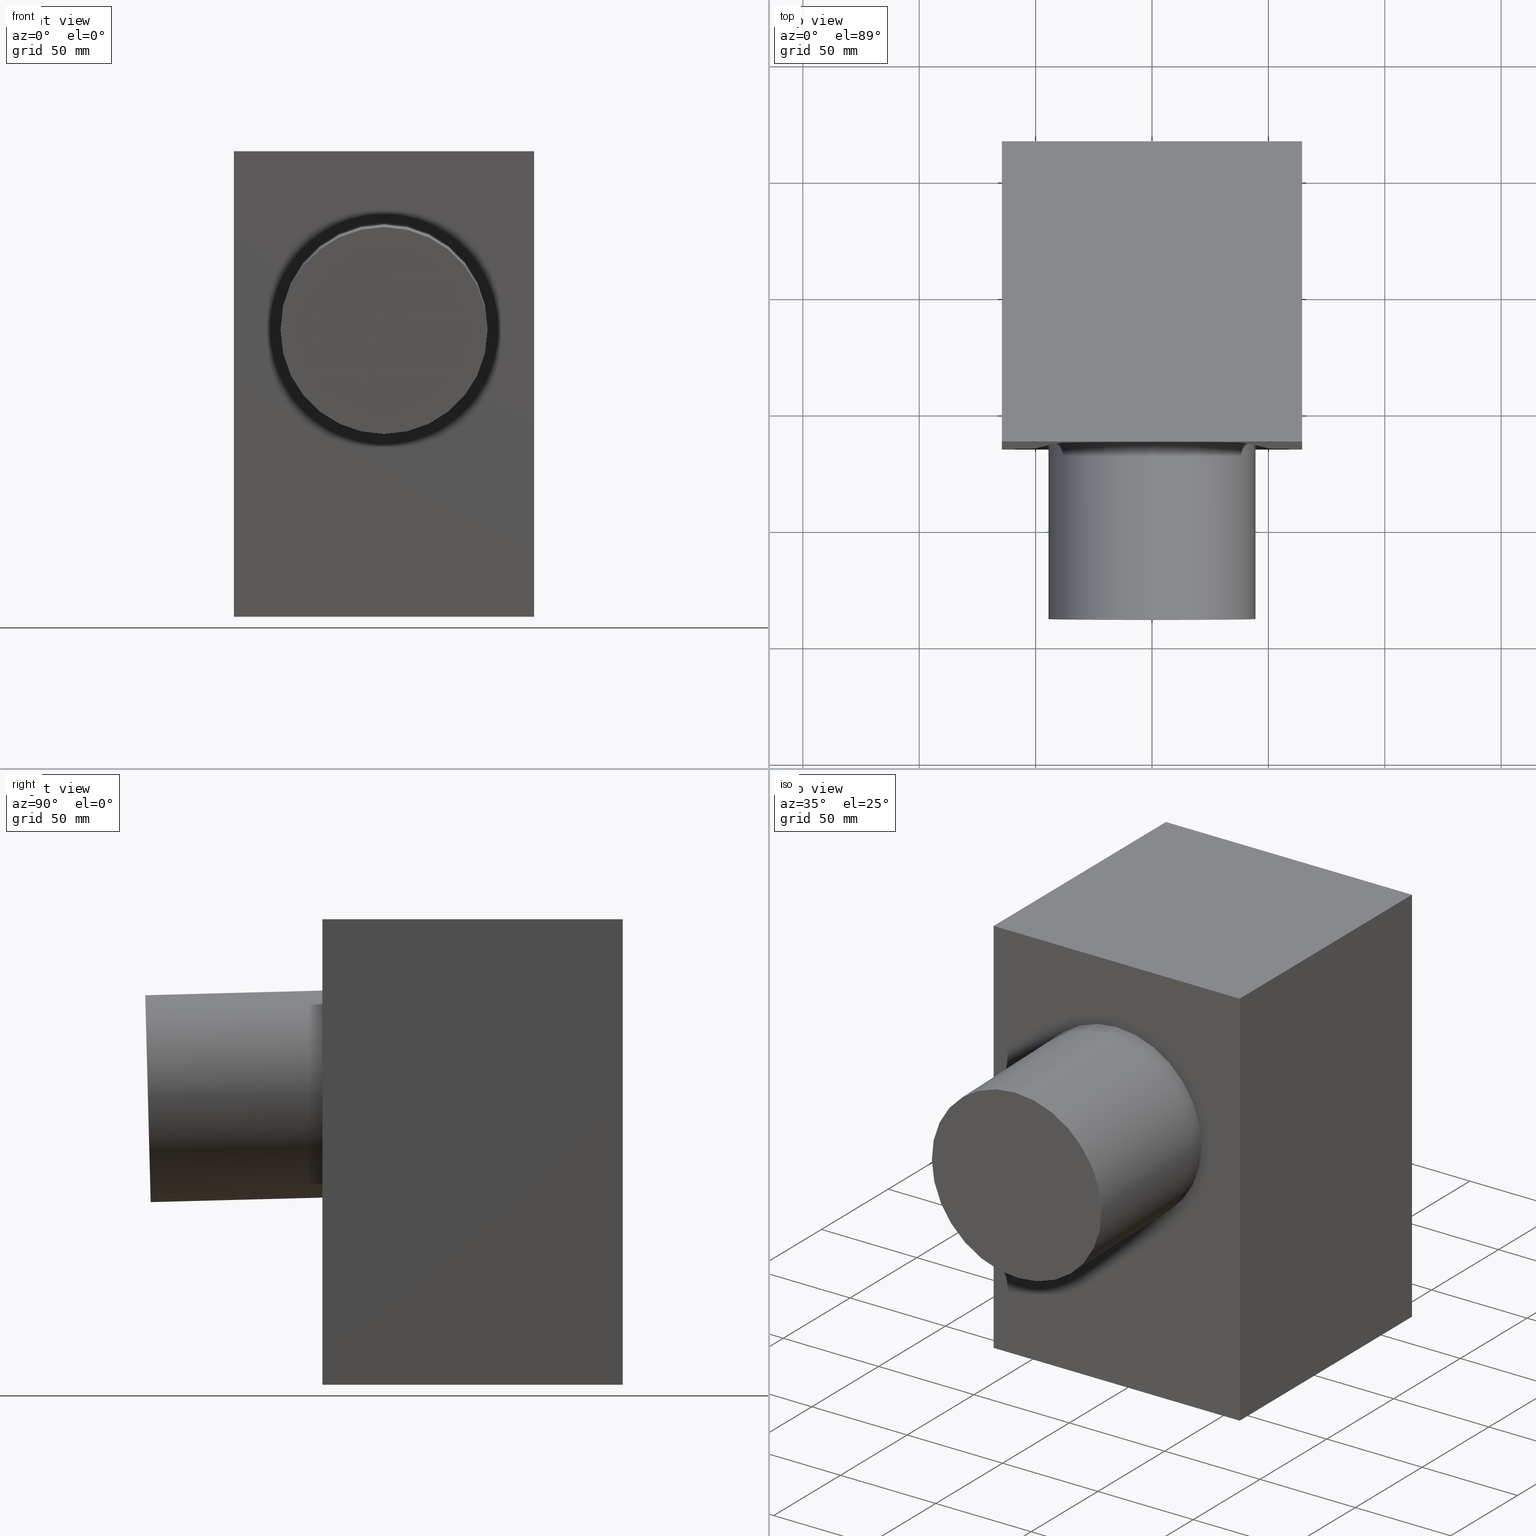
[diagram: canonical four-view strip — front | top / right | iso, engineering-drawing reading convention]
A machine part, canonical four-view strip (front | top / right | iso — engineering-drawing reading convention). The complete STEP part file that produces these views, byte-faithful:
ISO-10303-21;
HEADER;
/* Generated by software containing ST-Developer
 * from STEP Tools, Inc. (www.steptools.com) 
 */

FILE_DESCRIPTION(
/* description */ (''),
/* implementation_level */ '2;1');

FILE_NAME(
/* name */ 
'E:\\Workspace\\resitec\\Packs\\Kategorie\\Sifons zu Wannen und Rinnen
\\RS550.80.s.ipt.step',
/* time_stamp */ '2020-09-18T08:31:25+02:00',
/* author */ ('unternaa'),
/* organization */ (''),
/* preprocessor_version */ 'ST-DEVELOPER v18.1',
/* originating_system */ 'Autodesk Inventor 2020',
/* authorisation */ '');

FILE_SCHEMA (('AUTOMOTIVE_DESIGN { 1 0 10303 214 3 1 1 }'));
ENDSEC;

DATA;
#10=MECHANICAL_DESIGN_GEOMETRIC_PRESENTATION_REPRESENTATION('',(#19,#20),
#278);
#11=SHAPE_REPRESENTATION_RELATIONSHIP('SRR','None',#285,#12);
#12=ADVANCED_BREP_SHAPE_REPRESENTATION('',(#21,#22),#277);
#13=CIRCLE('',#183,44.45);
#14=CIRCLE('',#184,44.45);
#15=CIRCLE('',#186,44.45);
#16=CIRCLE('',#187,44.45);
#17=CYLINDRICAL_SURFACE('',#182,44.45);
#18=CYLINDRICAL_SURFACE('',#185,44.45);
#19=STYLED_ITEM('',(#294),#21);
#20=STYLED_ITEM('',(#294),#22);
#21=MANIFOLD_SOLID_BREP('Volumenk\X\F6rper1',#155);
#22=MANIFOLD_SOLID_BREP('Volumenk\X\F6rper2',#156);
#23=FACE_OUTER_BOUND('',#33,.T.);
#24=FACE_OUTER_BOUND('',#34,.T.);
#25=FACE_OUTER_BOUND('',#35,.T.);
#26=FACE_OUTER_BOUND('',#36,.T.);
#27=FACE_OUTER_BOUND('',#37,.T.);
#28=FACE_OUTER_BOUND('',#38,.T.);
#29=FACE_OUTER_BOUND('',#39,.T.);
#30=FACE_OUTER_BOUND('',#40,.T.);
#31=FACE_OUTER_BOUND('',#41,.T.);
#32=FACE_OUTER_BOUND('',#42,.T.);
#33=EDGE_LOOP('',(#101,#102,#103,#104));
#34=EDGE_LOOP('',(#105,#106,#107,#108));
#35=EDGE_LOOP('',(#109,#110,#111,#112));
#36=EDGE_LOOP('',(#113,#114,#115,#116));
#37=EDGE_LOOP('',(#117,#118,#119,#120));
#38=EDGE_LOOP('',(#121,#122,#123,#124));
#39=EDGE_LOOP('',(#125,#126,#127,#128));
#40=EDGE_LOOP('',(#129,#130,#131,#132));
#41=EDGE_LOOP('',(#133,#134));
#42=EDGE_LOOP('',(#135,#136));
#43=LINE('',#238,#57);
#44=LINE('',#240,#58);
#45=LINE('',#242,#59);
#46=LINE('',#243,#60);
#47=LINE('',#246,#61);
#48=LINE('',#248,#62);
#49=LINE('',#249,#63);
#50=LINE('',#252,#64);
#51=LINE('',#254,#65);
#52=LINE('',#255,#66);
#53=LINE('',#257,#67);
#54=LINE('',#258,#68);
#55=LINE('',#266,#69);
#56=LINE('',#269,#70);
#57=VECTOR('',#194,304.8);
#58=VECTOR('',#195,304.8);
#59=VECTOR('',#196,304.8);
#60=VECTOR('',#197,304.8);
#61=VECTOR('',#200,304.8);
#62=VECTOR('',#201,304.8);
#63=VECTOR('',#202,304.8);
#64=VECTOR('',#205,304.8);
#65=VECTOR('',#206,304.8);
#66=VECTOR('',#207,304.8);
#67=VECTOR('',#210,304.8);
#68=VECTOR('',#211,304.8);
#69=VECTOR('',#220,304.8);
#70=VECTOR('',#223,304.8);
#71=VERTEX_POINT('',#236);
#72=VERTEX_POINT('',#237);
#73=VERTEX_POINT('',#239);
#74=VERTEX_POINT('',#241);
#75=VERTEX_POINT('',#245);
#76=VERTEX_POINT('',#247);
#77=VERTEX_POINT('',#251);
#78=VERTEX_POINT('',#253);
#79=VERTEX_POINT('',#262);
#80=VERTEX_POINT('',#263);
#81=VERTEX_POINT('',#265);
#82=VERTEX_POINT('',#267);
#83=EDGE_CURVE('',#71,#72,#43,.T.);
#84=EDGE_CURVE('',#73,#71,#44,.T.);
#85=EDGE_CURVE('',#74,#73,#45,.T.);
#86=EDGE_CURVE('',#72,#74,#46,.T.);
#87=EDGE_CURVE('',#75,#71,#47,.T.);
#88=EDGE_CURVE('',#76,#75,#48,.T.);
#89=EDGE_CURVE('',#73,#76,#49,.T.);
#90=EDGE_CURVE('',#77,#75,#50,.T.);
#91=EDGE_CURVE('',#78,#77,#51,.T.);
#92=EDGE_CURVE('',#76,#78,#52,.T.);
#93=EDGE_CURVE('',#72,#77,#53,.T.);
#94=EDGE_CURVE('',#78,#74,#54,.T.);
#95=EDGE_CURVE('',#79,#80,#13,.T.);
#96=EDGE_CURVE('',#81,#79,#55,.T.);
#97=EDGE_CURVE('',#82,#81,#14,.T.);
#98=EDGE_CURVE('',#80,#82,#56,.T.);
#99=EDGE_CURVE('',#80,#79,#15,.T.);
#100=EDGE_CURVE('',#81,#82,#16,.T.);
#101=ORIENTED_EDGE('',*,*,#83,.F.);
#102=ORIENTED_EDGE('',*,*,#84,.F.);
#103=ORIENTED_EDGE('',*,*,#85,.F.);
#104=ORIENTED_EDGE('',*,*,#86,.F.);
#105=ORIENTED_EDGE('',*,*,#87,.F.);
#106=ORIENTED_EDGE('',*,*,#88,.F.);
#107=ORIENTED_EDGE('',*,*,#89,.F.);
#108=ORIENTED_EDGE('',*,*,#84,.T.);
#109=ORIENTED_EDGE('',*,*,#90,.F.);
#110=ORIENTED_EDGE('',*,*,#91,.F.);
#111=ORIENTED_EDGE('',*,*,#92,.F.);
#112=ORIENTED_EDGE('',*,*,#88,.T.);
#113=ORIENTED_EDGE('',*,*,#93,.F.);
#114=ORIENTED_EDGE('',*,*,#86,.T.);
#115=ORIENTED_EDGE('',*,*,#94,.F.);
#116=ORIENTED_EDGE('',*,*,#91,.T.);
#117=ORIENTED_EDGE('',*,*,#85,.T.);
#118=ORIENTED_EDGE('',*,*,#89,.T.);
#119=ORIENTED_EDGE('',*,*,#92,.T.);
#120=ORIENTED_EDGE('',*,*,#94,.T.);
#121=ORIENTED_EDGE('',*,*,#93,.T.);
#122=ORIENTED_EDGE('',*,*,#90,.T.);
#123=ORIENTED_EDGE('',*,*,#87,.T.);
#124=ORIENTED_EDGE('',*,*,#83,.T.);
#125=ORIENTED_EDGE('',*,*,#95,.F.);
#126=ORIENTED_EDGE('',*,*,#96,.F.);
#127=ORIENTED_EDGE('',*,*,#97,.F.);
#128=ORIENTED_EDGE('',*,*,#98,.F.);
#129=ORIENTED_EDGE('',*,*,#99,.F.);
#130=ORIENTED_EDGE('',*,*,#98,.T.);
#131=ORIENTED_EDGE('',*,*,#100,.F.);
#132=ORIENTED_EDGE('',*,*,#96,.T.);
#133=ORIENTED_EDGE('',*,*,#97,.T.);
#134=ORIENTED_EDGE('',*,*,#100,.T.);
#135=ORIENTED_EDGE('',*,*,#99,.T.);
#136=ORIENTED_EDGE('',*,*,#95,.T.);
#137=PLANE('',#176);
#138=PLANE('',#177);
#139=PLANE('',#178);
#140=PLANE('',#179);
#141=PLANE('',#180);
#142=PLANE('',#181);
#143=PLANE('',#188);
#144=PLANE('',#189);
#145=ADVANCED_FACE('',(#23),#137,.T.);
#146=ADVANCED_FACE('',(#24),#138,.T.);
#147=ADVANCED_FACE('',(#25),#139,.T.);
#148=ADVANCED_FACE('',(#26),#140,.T.);
#149=ADVANCED_FACE('',(#27),#141,.T.);
#150=ADVANCED_FACE('',(#28),#142,.T.);
#151=ADVANCED_FACE('',(#29),#17,.T.);
#152=ADVANCED_FACE('',(#30),#18,.T.);
#153=ADVANCED_FACE('',(#31),#143,.T.);
#154=ADVANCED_FACE('',(#32),#144,.T.);
#155=CLOSED_SHELL('',(#145,#146,#147,#148,#149,#150));
#156=CLOSED_SHELL('',(#151,#152,#153,#154));
#157=DERIVED_UNIT_ELEMENT(#159,1.);
#158=DERIVED_UNIT_ELEMENT(#280,3.);
#159=(
MASS_UNIT()
NAMED_UNIT(*)
SI_UNIT($,.GRAM.)
);
#160=DERIVED_UNIT((#157,#158));
#161=MEASURE_REPRESENTATION_ITEM('density measure',
POSITIVE_RATIO_MEASURE(1.),#160);
#162=PROPERTY_DEFINITION_REPRESENTATION(#167,#164);
#163=PROPERTY_DEFINITION_REPRESENTATION(#168,#165);
#164=REPRESENTATION('material name',(#166),#277);
#165=REPRESENTATION('density',(#161),#277);
#166=DESCRIPTIVE_REPRESENTATION_ITEM('Generisch','Generisch');
#167=PROPERTY_DEFINITION('material property','material name',#287);
#168=PROPERTY_DEFINITION('material property','density of part',#287);
#169=DATE_TIME_ROLE('creation_date');
#170=APPLIED_DATE_AND_TIME_ASSIGNMENT(#171,#169,(#287));
#171=DATE_AND_TIME(#172,#173);
#172=CALENDAR_DATE(2020,18,9);
#173=LOCAL_TIME(7,13,15.,#174);
#174=COORDINATED_UNIVERSAL_TIME_OFFSET(0,0,.BEHIND.);
#175=AXIS2_PLACEMENT_3D('placement',#234,#190,#191);
#176=AXIS2_PLACEMENT_3D('',#235,#192,#193);
#177=AXIS2_PLACEMENT_3D('',#244,#198,#199);
#178=AXIS2_PLACEMENT_3D('',#250,#203,#204);
#179=AXIS2_PLACEMENT_3D('',#256,#208,#209);
#180=AXIS2_PLACEMENT_3D('',#259,#212,#213);
#181=AXIS2_PLACEMENT_3D('',#260,#214,#215);
#182=AXIS2_PLACEMENT_3D('',#261,#216,#217);
#183=AXIS2_PLACEMENT_3D('',#264,#218,#219);
#184=AXIS2_PLACEMENT_3D('',#268,#221,#222);
#185=AXIS2_PLACEMENT_3D('',#270,#224,#225);
#186=AXIS2_PLACEMENT_3D('',#271,#226,#227);
#187=AXIS2_PLACEMENT_3D('',#272,#228,#229);
#188=AXIS2_PLACEMENT_3D('',#273,#230,#231);
#189=AXIS2_PLACEMENT_3D('',#274,#232,#233);
#190=DIRECTION('axis',(0.,0.,1.));
#191=DIRECTION('refdir',(1.,0.,0.));
#192=DIRECTION('center_axis',(1.,6.55806158732067E-17,0.));
#193=DIRECTION('ref_axis',(0.,0.,-1.));
#194=DIRECTION('',(0.,1.,0.));
#195=DIRECTION('',(0.,0.,1.));
#196=DIRECTION('',(0.,-1.,0.));
#197=DIRECTION('',(0.,0.,-1.));
#198=DIRECTION('center_axis',(0.,-1.,0.));
#199=DIRECTION('ref_axis',(0.,0.,-1.));
#200=DIRECTION('',(1.,0.,0.));
#201=DIRECTION('',(0.,0.,1.));
#202=DIRECTION('',(-1.,0.,0.));
#203=DIRECTION('center_axis',(-1.,-6.55806158732067E-17,0.));
#204=DIRECTION('ref_axis',(0.,0.,-1.));
#205=DIRECTION('',(6.55806158732067E-17,-1.,0.));
#206=DIRECTION('',(0.,0.,1.));
#207=DIRECTION('',(-6.55806158732067E-17,1.,0.));
#208=DIRECTION('center_axis',(0.,1.,0.));
#209=DIRECTION('ref_axis',(0.,0.,-1.));
#210=DIRECTION('',(-1.,0.,0.));
#211=DIRECTION('',(1.,0.,0.));
#212=DIRECTION('center_axis',(0.,0.,-1.));
#213=DIRECTION('ref_axis',(1.,0.,0.));
#214=DIRECTION('center_axis',(0.,0.,1.));
#215=DIRECTION('ref_axis',(-1.,0.,0.));
#216=DIRECTION('center_axis',(0.,0.999657324975557,0.0261769483078731));
#217=DIRECTION('ref_axis',(-1.61554457443259E-15,-0.026176948307873,0.999657324975557));
#218=DIRECTION('center_axis',(0.,0.999657324975557,0.0261769483078731));
#219=DIRECTION('ref_axis',(-1.61554457443259E-15,-0.026176948307873,0.999657324975557));
#220=DIRECTION('',(0.,0.999657324975557,0.0261769483078731));
#221=DIRECTION('center_axis',(0.,-0.999657324975557,-0.0261769483078731));
#222=DIRECTION('ref_axis',(-1.61554457443259E-15,-0.026176948307873,0.999657324975557));
#223=DIRECTION('',(0.,-0.999657324975557,-0.0261769483078729));
#224=DIRECTION('center_axis',(0.,0.999657324975557,0.0261769483078731));
#225=DIRECTION('ref_axis',(-1.61554457443259E-15,-0.026176948307873,0.999657324975557));
#226=DIRECTION('center_axis',(0.,0.999657324975557,0.0261769483078731));
#227=DIRECTION('ref_axis',(-1.61554457443259E-15,-0.026176948307873,0.999657324975557));
#228=DIRECTION('center_axis',(0.,-0.999657324975557,-0.0261769483078731));
#229=DIRECTION('ref_axis',(-1.61554457443259E-15,-0.026176948307873,0.999657324975557));
#230=DIRECTION('center_axis',(0.,-0.999657324975557,-0.0261769483078731));
#231=DIRECTION('ref_axis',(-1.,0.,0.));
#232=DIRECTION('center_axis',(0.,0.999657324975557,0.0261769483078731));
#233=DIRECTION('ref_axis',(1.,0.,0.));
#234=CARTESIAN_POINT('',(0.,0.,0.));
#235=CARTESIAN_POINT('Origin',(64.5000000000001,-64.5000000000002,0.));
#236=CARTESIAN_POINT('',(64.5000000000001,-64.5000000000002,0.));
#237=CARTESIAN_POINT('',(64.5000000000001,64.5000000000002,0.));
#238=CARTESIAN_POINT('',(64.5000000000001,-64.5000000000002,0.));
#239=CARTESIAN_POINT('',(64.5000000000001,-64.5000000000002,-200.));
#240=CARTESIAN_POINT('',(64.5000000000001,-64.5000000000002,-200.));
#241=CARTESIAN_POINT('',(64.5000000000001,64.5000000000002,-200.));
#242=CARTESIAN_POINT('',(64.5000000000001,64.5000000000002,-200.));
#243=CARTESIAN_POINT('',(64.5000000000001,64.5000000000002,0.));
#244=CARTESIAN_POINT('Origin',(-64.5000000000001,-64.5000000000002,0.));
#245=CARTESIAN_POINT('',(-64.5000000000001,-64.5000000000002,0.));
#246=CARTESIAN_POINT('',(-64.5000000000001,-64.5000000000002,0.));
#247=CARTESIAN_POINT('',(-64.5000000000001,-64.5000000000002,-200.));
#248=CARTESIAN_POINT('',(-64.5000000000001,-64.5000000000002,-200.));
#249=CARTESIAN_POINT('',(64.5000000000001,-64.5000000000002,-200.));
#250=CARTESIAN_POINT('Origin',(-64.5000000000001,64.5000000000002,0.));
#251=CARTESIAN_POINT('',(-64.5000000000001,64.5000000000002,0.));
#252=CARTESIAN_POINT('',(-64.5000000000001,64.5000000000002,0.));
#253=CARTESIAN_POINT('',(-64.5000000000001,64.5000000000002,-200.));
#254=CARTESIAN_POINT('',(-64.5000000000001,64.5000000000002,-200.));
#255=CARTESIAN_POINT('',(-64.5000000000001,-64.5000000000002,-200.));
#256=CARTESIAN_POINT('Origin',(64.5000000000001,64.5000000000002,0.));
#257=CARTESIAN_POINT('',(64.5000000000001,64.5000000000002,0.));
#258=CARTESIAN_POINT('',(-64.5000000000001,64.5000000000002,-200.));
#259=CARTESIAN_POINT('Origin',(-75.0000000000004,64.5000000000002,-200.));
#260=CARTESIAN_POINT('Origin',(-75.0000000000004,64.5000000000002,0.));
#261=CARTESIAN_POINT('Origin',(7.18109563335285E-14,-139.445162598762,-77.0941558646153));
#262=CARTESIAN_POINT('',(-2.47764294578443E-13,-60.6361419530021,-30.5652319048219));
#263=CARTESIAN_POINT('',(1.43621912667057E-13,-58.3090112484321,-119.434768095149));
#264=CARTESIAN_POINT('Origin',(7.18109563335285E-14,-59.4725766007171,-74.9999999999854));
#265=CARTESIAN_POINT('',(0.,-140.608727951047,-32.6593877694518));
#266=CARTESIAN_POINT('',(-2.87243825334114E-13,-140.608727951047,-32.6593877694518));
#267=CARTESIAN_POINT('',(1.23882147289222E-13,-138.281597246477,-121.528923959779));
#268=CARTESIAN_POINT('Origin',(7.18109563335285E-14,-139.445162598762,-77.0941558646153));
#269=CARTESIAN_POINT('',(1.23882147289222E-13,-58.3090112484321,-119.434768095149));
#270=CARTESIAN_POINT('Origin',(7.18109563335285E-14,-139.445162598762,-77.0941558646153));
#271=CARTESIAN_POINT('Origin',(7.18109563335285E-14,-59.4725766007171,-74.9999999999854));
#272=CARTESIAN_POINT('Origin',(7.18109563335285E-14,-139.445162598762,-77.0941558646153));
#273=CARTESIAN_POINT('Origin',(0.,-140.608727951047,-32.6593877694518));
#274=CARTESIAN_POINT('Origin',(0.,-60.6361419530021,-30.5652319048219));
#275=UNCERTAINTY_MEASURE_WITH_UNIT(LENGTH_MEASURE(0.01),#279,
'DISTANCE_ACCURACY_VALUE',
'Maximum model space distance between geometric entities at asserted c
onnectivities');
#276=UNCERTAINTY_MEASURE_WITH_UNIT(LENGTH_MEASURE(0.01),#279,
'DISTANCE_ACCURACY_VALUE',
'Maximum model space distance between geometric entities at asserted c
onnectivities');
#277=(
GEOMETRIC_REPRESENTATION_CONTEXT(3)
GLOBAL_UNCERTAINTY_ASSIGNED_CONTEXT((#275))
GLOBAL_UNIT_ASSIGNED_CONTEXT((#279,#281,#282))
REPRESENTATION_CONTEXT('','3D')
);
#278=(
GEOMETRIC_REPRESENTATION_CONTEXT(3)
GLOBAL_UNCERTAINTY_ASSIGNED_CONTEXT((#276))
GLOBAL_UNIT_ASSIGNED_CONTEXT((#279,#281,#282))
REPRESENTATION_CONTEXT('','3D')
);
#279=(
LENGTH_UNIT()
NAMED_UNIT(*)
SI_UNIT(.MILLI.,.METRE.)
);
#280=(
LENGTH_UNIT()
NAMED_UNIT(*)
SI_UNIT(.CENTI.,.METRE.)
);
#281=(
NAMED_UNIT(*)
PLANE_ANGLE_UNIT()
SI_UNIT($,.RADIAN.)
);
#282=(
NAMED_UNIT(*)
SI_UNIT($,.STERADIAN.)
SOLID_ANGLE_UNIT()
);
#283=SHAPE_DEFINITION_REPRESENTATION(#284,#285);
#284=PRODUCT_DEFINITION_SHAPE('',$,#287);
#285=SHAPE_REPRESENTATION('',(#175),#277);
#286=PRODUCT_DEFINITION_CONTEXT('part definition',#291,'design');
#287=PRODUCT_DEFINITION('RS550.80.s','RS550.80.s',#288,#286);
#288=PRODUCT_DEFINITION_FORMATION('',$,#293);
#289=PRODUCT_RELATED_PRODUCT_CATEGORY('RS550.80.s','RS550.80.s',(#293));
#290=APPLICATION_PROTOCOL_DEFINITION('international standard',
'automotive_design',2009,#291);
#291=APPLICATION_CONTEXT(
'Core Data for Automotive Mechanical Design Process');
#292=PRODUCT_CONTEXT('part definition',#291,'mechanical');
#293=PRODUCT('RS550.80.s','RS550.80.s',$,(#292));
#294=PRESENTATION_STYLE_ASSIGNMENT((#295));
#295=SURFACE_STYLE_USAGE(.BOTH.,#298);
#296=SURFACE_STYLE_RENDERING_WITH_PROPERTIES($,#302,(#297));
#297=SURFACE_STYLE_TRANSPARENT(0.);
#298=SURFACE_SIDE_STYLE('',(#299,#296));
#299=SURFACE_STYLE_FILL_AREA(#300);
#300=FILL_AREA_STYLE('',(#301));
#301=FILL_AREA_STYLE_COLOUR('',#302);
#302=COLOUR_RGB('',0.749019607843137,0.749019607843137,0.749019607843137);
ENDSEC;
END-ISO-10303-21;
